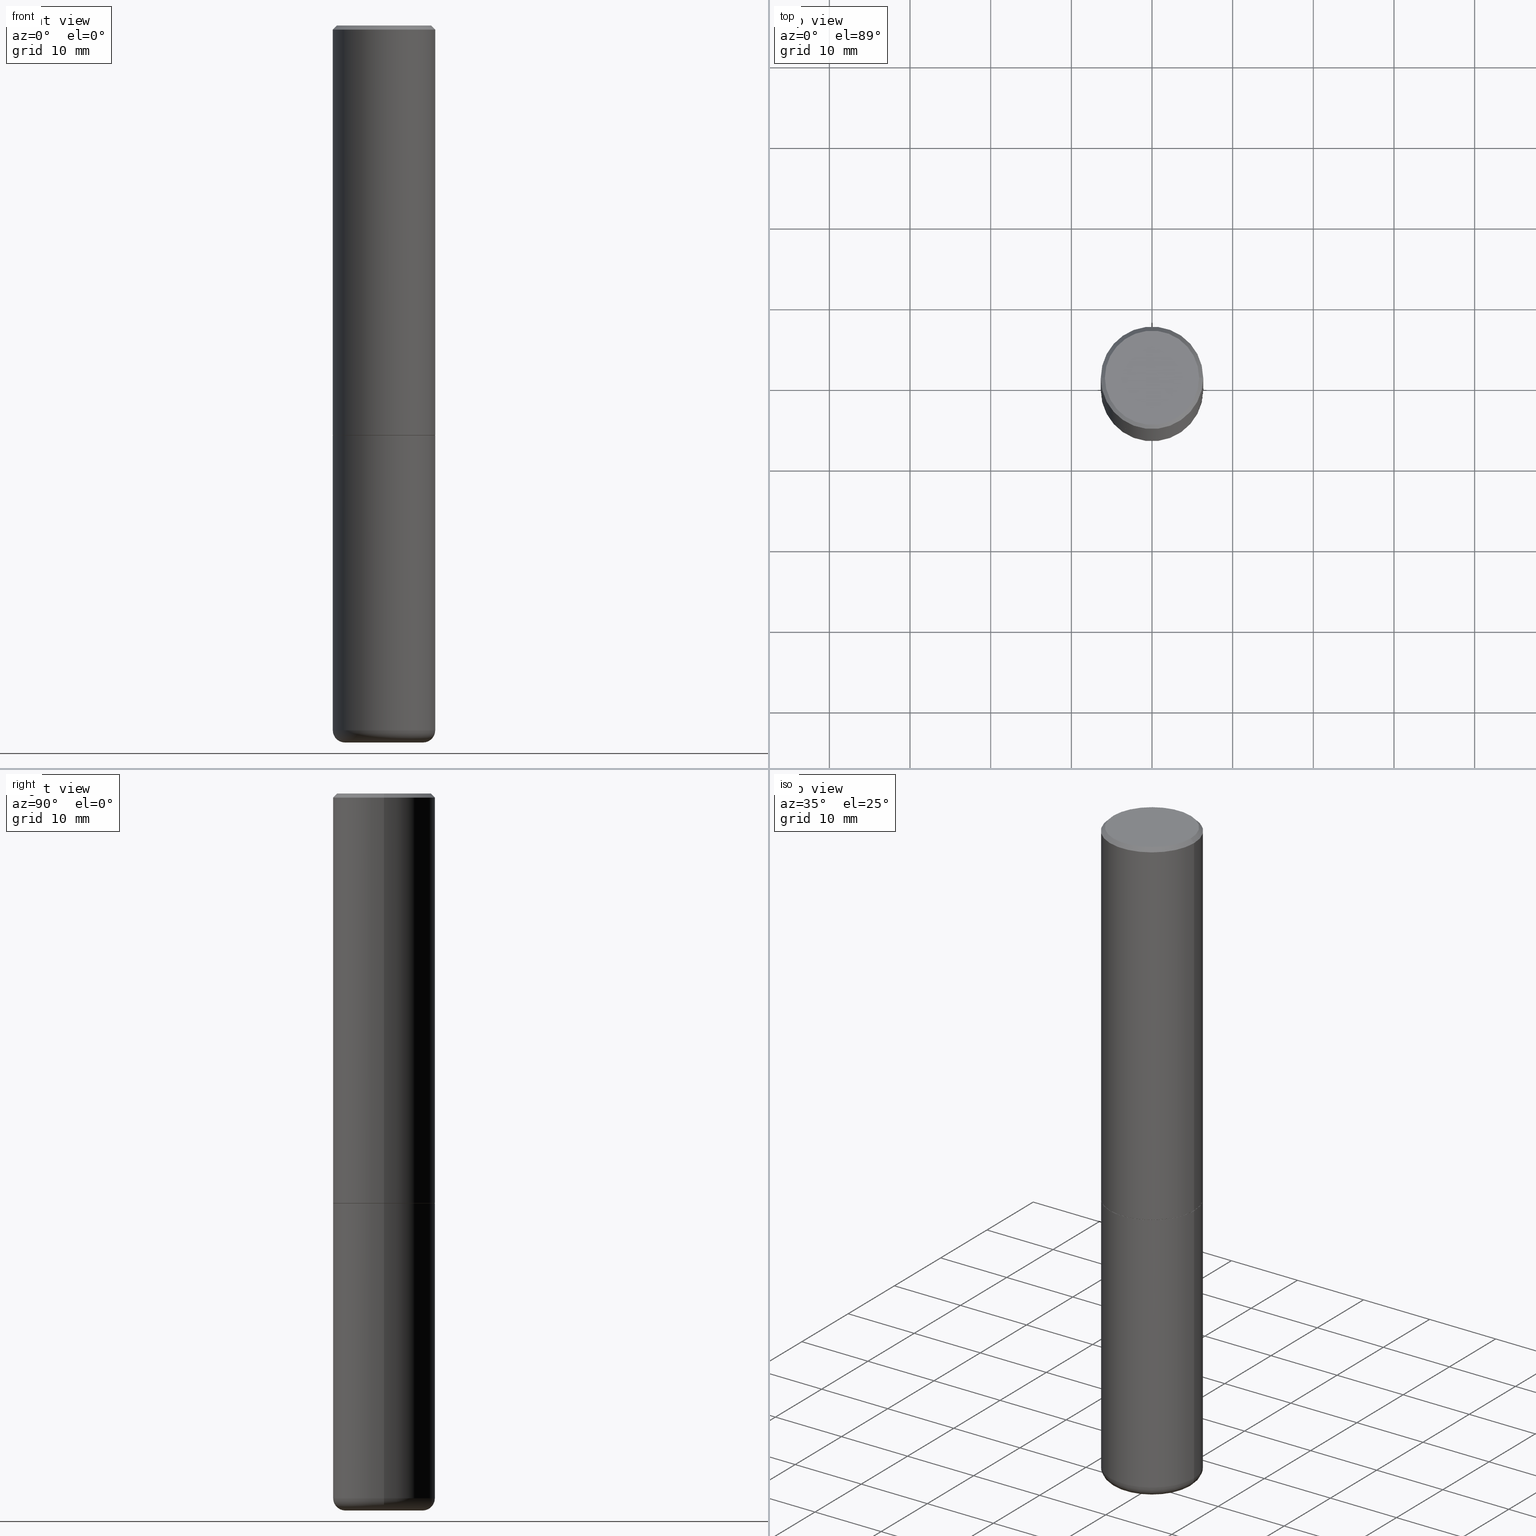
[diagram: canonical four-view strip — front | top / right | iso, engineering-drawing reading convention]
A machine part, canonical four-view strip (front | top / right | iso — engineering-drawing reading convention). The complete STEP part file that produces these views, byte-faithful:
ISO-10303-21;
HEADER;
FILE_DESCRIPTION (( 'STEP AP203' ),
    '1' );
FILE_NAME ('77195.STEP',
    '2024-03-06T16:23:03',
    ( '' ),
    ( '' ),
    'SwSTEP 2.0',
    'SolidWorks 2023',
    '' );
FILE_SCHEMA (( 'CONFIG_CONTROL_DESIGN' ));
ENDSEC;

DATA;
#1 = CARTESIAN_POINT ( 'NONE',  ( 2.087702828670439639E-46, -2.980686340760894400E-32, -8.537024980200822558E-18 ) ) ;
#2 = AXIS2_PLACEMENT_3D ( 'NONE', #143, #390, #11 ) ;
#3 = AXIS2_PLACEMENT_3D ( 'NONE', #276, #30, #161 ) ;
#4 = DIRECTION ( 'NONE',  ( -2.445468806185136597E-29, 3.491481338843145583E-15, 1.000000000000000000 ) ) ;
#5 = ORIENTED_EDGE ( 'NONE', *, *, #372, .T. ) ;
#6 = APPROVAL_ROLE ( '' ) ;
#7 = DIRECTION ( 'NONE',  ( 1.000000000000000000, -6.982962677686266711E-15, 4.876176775795935793E-29 ) ) ;
#8 = DATE_TIME_ROLE ( 'creation_date' ) ;
#9 = FACE_OUTER_BOUND ( 'NONE', #109, .T. ) ;
#10 = AXIS2_PLACEMENT_3D ( 'NONE', #257, #293, #316 ) ;
#11 = DIRECTION ( 'NONE',  ( -1.000000000000000000, 6.982962677686265922E-15, -4.876176775795935793E-29 ) ) ;
#12 = ORIENTED_EDGE ( 'NONE', *, *, #386, .T. ) ;
#13 = ADVANCED_FACE ( 'NONE', ( #180 ), #184, .T. ) ;
#14 = CARTESIAN_POINT ( 'NONE',  ( -0.1899999999999999745, -1.066066460767623105E-14, -3.439999999999999947 ) ) ;
#15 = CARTESIAN_POINT ( 'NONE',  ( 4.890937612370287172E-31, -6.982962677686310098E-17, -0.02000000000000005593 ) ) ;
#16 = EDGE_LOOP ( 'NONE', ( #120, #328 ) ) ;
#17 = DIRECTION ( 'NONE',  ( 2.445468806185136597E-29, -3.491481338843145583E-15, -1.000000000000000000 ) ) ;
#18 = ORIENTED_EDGE ( 'NONE', *, *, #418, .T. ) ;
#19 = MANIFOLD_SOLID_BREP ( 'Body-Move/Copy2[1]', #249 ) ;
#20 = CARTESIAN_POINT ( 'NONE',  ( 4.890937612370273194E-29, -6.982962677686291165E-15, -2.000000000000000000 ) ) ;
#21 = DIRECTION ( 'NONE',  ( -2.445468806185136597E-29, 3.491481338843145583E-15, 1.000000000000000000 ) ) ;
#22 = LINE ( 'NONE', #217, #92 ) ;
#23 = CARTESIAN_POINT ( 'NONE',  ( 4.888492143564087591E-29, -6.979471196347447369E-15, -1.998999999999999888 ) ) ;
#24 = PRODUCT_RELATED_PRODUCT_CATEGORY ( 'detail', '', ( #371 ) ) ;
#25 = AXIS2_PLACEMENT_3D ( 'NONE', #23, #311, #413 ) ;
#26 = AXIS2_PLACEMENT_3D ( 'NONE', #280, #312, #76 ) ;
#27 = DIRECTION ( 'NONE',  ( 1.000000000000000000, -6.982962677686266711E-15, 0.000000000000000000 ) ) ;
#28 = CARTESIAN_POINT ( 'NONE',  ( 8.412412693276869938E-29, -1.201069580562042103E-14, -3.439999999999999947 ) ) ;
#29 = ADVANCED_FACE ( 'NONE', ( #405 ), #368, .T. ) ;
#30 = DIRECTION ( 'NONE',  ( -2.445468806185136597E-29, 3.491481338843145583E-15, 1.000000000000000000 ) ) ;
#31 = AXIS2_PLACEMENT_3D ( 'NONE', #111, #240, #361 ) ;
#32 = DIRECTION ( 'NONE',  ( -2.445468806185136597E-29, 3.491481338843145583E-15, 1.000000000000000000 ) ) ;
#33 = APPROVAL_ROLE ( '' ) ;
#34 = DIRECTION ( 'NONE',  ( -1.000000000000000000, 6.982962677686265922E-15, -4.876176775795935793E-29 ) ) ;
#35 = CARTESIAN_POINT ( 'NONE',  ( -0.2489999999999999991, -5.208412811295418518E-15, -2.000000000000000000 ) ) ;
#36 = APPROVAL_STATUS ( 'not_yet_approved' ) ;
#37 = DIRECTION ( 'NONE',  ( 1.000000000000000000, -6.982962677686267499E-15, 4.876225828469310563E-29 ) ) ;
#38 = ORIENTED_EDGE ( 'NONE', *, *, #275, .F. ) ;
#39 = DIRECTION ( 'NONE',  ( -1.000000000000000000, 6.982962677686265922E-15, -4.876176775795935793E-29 ) ) ;
#40 = VERTEX_POINT ( 'NONE', #300 ) ;
#41 = DATE_AND_TIME ( #226, #250 ) ;
#42 = DIRECTION ( 'NONE',  ( -2.445468806185136597E-29, 3.491481338843145583E-15, 1.000000000000000000 ) ) ;
#43 = DIRECTION ( 'NONE',  ( 0.7071067811866199593, -2.468850131083015945E-15, 0.7071067811864750752 ) ) ;
#44 = DIRECTION ( 'NONE',  ( -2.445468806185136877E-29, 3.491481338843145188E-15, 1.000000000000000000 ) ) ;
#45 = ORIENTED_EDGE ( 'NONE', *, *, #278, .F. ) ;
#46 = AXIS2_PLACEMENT_3D ( 'NONE', #108, #227, #39 ) ;
#47 = AXIS2_PLACEMENT_3D ( 'NONE', #374, #310, #90 ) ;
#48 = ORIENTED_EDGE ( 'NONE', *, *, #267, .F. ) ;
#49 = EDGE_CURVE ( 'NONE', #298, #130, #113, .T. ) ;
#50 = EDGE_LOOP ( 'NONE', ( #366, #173, #152, #38 ) ) ;
#51 = EDGE_CURVE ( 'NONE', #245, #130, #104, .T. ) ;
#52 = EDGE_LOOP ( 'NONE', ( #5, #155 ) ) ;
#53 = AXIS2_PLACEMENT_3D ( 'NONE', #382, #42, #385 ) ;
#54 = DIRECTION ( 'NONE',  ( -2.445468806185136597E-29, 3.491481338843145583E-15, 1.000000000000000000 ) ) ;
#55 = CARTESIAN_POINT ( 'NONE',  ( 8.559140821647976968E-29, -1.222018468595100934E-14, -3.500000000000000000 ) ) ;
#56 =( CONVERSION_BASED_UNIT ( 'INCH', #409 ) LENGTH_UNIT ( ) NAMED_UNIT ( #121 ) );
#57 = DIRECTION ( 'NONE',  ( 0.7071067811865465735, -7.319954787623252890E-15, -0.7071067811865484609 ) ) ;
#58 = EDGE_CURVE ( 'NONE', #245, #140, #241, .T. ) ;
#59 = AXIS2_PLACEMENT_3D ( 'NONE', #238, #290, #34 ) ;
#60 = DIRECTION ( 'NONE',  ( 1.000000000000000000, -6.982962677686273021E-15, 0.000000000000000000 ) ) ;
#61 = CARTESIAN_POINT ( 'NONE',  ( -0.2500000000000000000, -7.720472402253106025E-15, -2.000000000000000000 ) ) ;
#62 = MECHANICAL_CONTEXT ( 'NONE', #231, 'mechanical' ) ;
#63 = DIRECTION ( 'NONE',  ( -2.445468806185136597E-29, 3.491481338843145583E-15, 1.000000000000000000 ) ) ;
#64 = APPROVAL_STATUS ( 'not_yet_approved' ) ;
#65 = DIRECTION ( 'NONE',  ( 1.000000000000000000, -6.982962677686265133E-15, 4.883557194083112340E-29 ) ) ;
#66 = PERSON_AND_ORGANIZATION ( #216, #81 ) ;
#67 = FACE_OUTER_BOUND ( 'NONE', #239, .T. ) ;
#68 = CLOSED_SHELL ( 'NONE', ( #123, #13, #346, #29, #330, #252, #335, #132 ) ) ;
#69 = CC_DESIGN_APPROVAL ( #351, ( #393 ) ) ;
#70 = ORIENTED_EDGE ( 'NONE', *, *, #278, .T. ) ;
#71 = APPLICATION_PROTOCOL_DEFINITION ( 'international standard', 'config_control_design', 1994, #379 ) ;
#72 = CC_DESIGN_PERSON_AND_ORGANIZATION_ASSIGNMENT ( #348, #264, ( #393 ) ) ;
#73 = LINE ( 'NONE', #172, #265 ) ;
#74 = ORIENTED_EDGE ( 'NONE', *, *, #386, .F. ) ;
#75 = ADVANCED_FACE ( 'NONE', ( #322 ), #256, .T. ) ;
#76 = DIRECTION ( 'NONE',  ( 1.000000000000000000, -6.982962677686274599E-15, 0.000000000000000000 ) ) ;
#77 = CARTESIAN_POINT ( 'NONE',  ( 2.087702828670439639E-46, -2.980686340760894400E-32, -8.537024980200822558E-18 ) ) ;
#78 = ORIENTED_EDGE ( 'NONE', *, *, #89, .T. ) ;
#79 = ORIENTED_EDGE ( 'NONE', *, *, #167, .F. ) ;
#80 = AXIS2_PLACEMENT_3D ( 'NONE', #15, #154, #400 ) ;
#81 = ORGANIZATION ( 'UNSPECIFIED', 'UNSPECIFIED', '' ) ;
#82 = ORIENTED_EDGE ( 'NONE', *, *, #160, .T. ) ;
#83 = ORIENTED_EDGE ( 'NONE', *, *, #299, .F. ) ;
#84 = ORIENTED_EDGE ( 'NONE', *, *, #275, .T. ) ;
#85 = CARTESIAN_POINT ( 'NONE',  ( 4.890937612370273194E-29, -6.982962677686291165E-15, -2.000000000000000000 ) ) ;
#86 = CONICAL_SURFACE ( 'NONE', #165, 0.2499999999999999167, 0.7853981633974469467 ) ;
#87 = EDGE_CURVE ( 'NONE', #130, #298, #355, .T. ) ;
#88 = DIRECTION ( 'NONE',  ( 1.000000000000000000, -6.982962677686266711E-15, 0.000000000000000000 ) ) ;
#89 = EDGE_CURVE ( 'NONE', #396, #331, #395, .T. ) ;
#90 = DIRECTION ( 'NONE',  ( 1.000000000000000000, -6.982962677686266711E-15, 4.876176775795935793E-29 ) ) ;
#91 = PRODUCT_DEFINITION ( 'UNKNOWN', '', #393, #251 ) ;
#92 = VECTOR ( 'NONE', #43, 39.37007874015748143 ) ;
#93 = CC_DESIGN_APPROVAL ( #289, ( #91 ) ) ;
#94 = ORIENTED_EDGE ( 'NONE', *, *, #49, .T. ) ;
#95 = PERSON_AND_ORGANIZATION ( #216, #81 ) ;
#96 = AXIS2_PLACEMENT_3D ( 'NONE', #365, #403, #118 ) ;
#97 = AXIS2_PLACEMENT_3D ( 'NONE', #14, #339, #162 ) ;
#98 = PERSON_AND_ORGANIZATION_ROLE ( 'classification_officer' ) ;
#99 = FACE_OUTER_BOUND ( 'NONE', #16, .T. ) ;
#100 = PERSON_AND_ORGANIZATION ( #216, #81 ) ;
#101 = FACE_OUTER_BOUND ( 'NONE', #358, .T. ) ;
#102 = VERTEX_POINT ( 'NONE', #297 ) ;
#103 = COORDINATED_UNIVERSAL_TIME_OFFSET ( 5, 0, .BEHIND. ) ;
#104 = LINE ( 'NONE', #166, #129 ) ;
#105 = VECTOR ( 'NONE', #151, 39.37007874015748143 ) ;
#106 = VERTEX_POINT ( 'NONE', #317 ) ;
#107 = APPROVAL_DATE_TIME ( #170, #351 ) ;
#108 = CARTESIAN_POINT ( 'NONE',  ( 1.606081415867840870E-15, 0.2299999999999999267, -8.073092204240237214E-16 ) ) ;
#109 = EDGE_LOOP ( 'NONE', ( #360, #244, #215, #208 ) ) ;
#110 = FACE_OUTER_BOUND ( 'NONE', #388, .T. ) ;
#111 = CARTESIAN_POINT ( 'NONE',  ( 4.890937612370287172E-31, -6.982962677686310098E-17, -0.02000000000000005593 ) ) ;
#112 = DIRECTION ( 'NONE',  ( -2.445468806185136597E-29, 3.491481338843145583E-15, 1.000000000000000000 ) ) ;
#113 = CIRCLE ( 'NONE', #80, 0.2499999999999999167 ) ;
#114 = FACE_OUTER_BOUND ( 'NONE', #246, .T. ) ;
#115 = ORIENTED_EDGE ( 'NONE', *, *, #372, .F. ) ;
#116 = AXIS2_PLACEMENT_3D ( 'NONE', #404, #341, #338 ) ;
#117 = ORIENTED_EDGE ( 'NONE', *, *, #167, .T. ) ;
#118 = DIRECTION ( 'NONE',  ( 1.000000000000000000, -6.982962677686266711E-15, 0.000000000000000000 ) ) ;
#119 = CARTESIAN_POINT ( 'NONE',  ( 4.890937612370273194E-29, -6.982962677686291165E-15, -2.000000000000000000 ) ) ;
#120 = ORIENTED_EDGE ( 'NONE', *, *, #58, .T. ) ;
#121 = DIMENSIONAL_EXPONENTS ( 1.000000000000000000, 0.000000000000000000, 0.000000000000000000, 0.000000000000000000, 0.000000000000000000, 0.000000000000000000, 0.000000000000000000 ) ;
#122 = CIRCLE ( 'NONE', #168, 0.2500000000000000000 ) ;
#123 = ADVANCED_FACE ( 'NONE', ( #67 ), #148, .T. ) ;
#124 = APPROVAL_PERSON_ORGANIZATION ( #142, #207, #33 ) ;
#125 = CC_DESIGN_PERSON_AND_ORGANIZATION_ASSIGNMENT ( #95, #417, ( #393 ) ) ;
#126 = FACE_OUTER_BOUND ( 'NONE', #273, .T. ) ;
#127 = CARTESIAN_POINT ( 'NONE',  ( 4.888492143564087591E-29, -6.979471196347447369E-15, -1.998999999999999888 ) ) ;
#128 = ADVANCED_FACE ( 'NONE', ( #101 ), #353, .T. ) ;
#129 = VECTOR ( 'NONE', #204, 39.37007874015748143 ) ;
#130 = VERTEX_POINT ( 'NONE', #139 ) ;
#131 = DIRECTION ( 'NONE',  ( -2.445468806185136597E-29, 3.491481338843145583E-15, 1.000000000000000000 ) ) ;
#132 = ADVANCED_FACE ( 'NONE', ( #99 ), #327, .F. ) ;
#133 = DATE_AND_TIME ( #416, #281 ) ;
#134 = COORDINATED_UNIVERSAL_TIME_OFFSET ( 5, 0, .BEHIND. ) ;
#135 = TOROIDAL_SURFACE ( 'NONE', #285, 0.1899999999999999745, 0.05999999999999995615 ) ;
#136 = DIRECTION ( 'NONE',  ( -2.445468806185136597E-29, 3.491481338843145583E-15, 1.000000000000000000 ) ) ;
#137 = SECURITY_CLASSIFICATION ( '', '', #193 ) ;
#138 = ORIENTED_EDGE ( 'NONE', *, *, #49, .F. ) ;
#139 = CARTESIAN_POINT ( 'NONE',  ( -0.2499999999999999167, 1.675911042644703182E-15, -0.02000000000000005593 ) ) ;
#140 = VERTEX_POINT ( 'NONE', #397 ) ;
#141 = ORIENTED_EDGE ( 'NONE', *, *, #87, .F. ) ;
#142 = PERSON_AND_ORGANIZATION ( #216, #81 ) ;
#143 = CARTESIAN_POINT ( 'NONE',  ( 8.559140821647976968E-29, -1.222018468595100934E-14, -3.500000000000000000 ) ) ;
#144 = ADVANCED_FACE ( 'NONE', ( #9 ), #350, .T. ) ;
#145 = EDGE_LOOP ( 'NONE', ( #301, #176, #94, #354 ) ) ;
#146 = APPROVAL_STATUS ( 'not_yet_approved' ) ;
#147 = CARTESIAN_POINT ( 'NONE',  ( 8.412412693276869938E-29, -1.201069580562042103E-14, -3.439999999999999947 ) ) ;
#148 = CONICAL_SURFACE ( 'NONE', #53, 0.2489999999999999991, 0.7853981633975507526 ) ;
#149 = CIRCLE ( 'NONE', #26, 0.05999999999999994227 ) ;
#150 = EDGE_LOOP ( 'NONE', ( #263, #333, #232, #181 ) ) ;
#151 = DIRECTION ( 'NONE',  ( -0.7071067811866199593, 7.493145998870616062E-15, 0.7071067811864750752 ) ) ;
#152 = ORIENTED_EDGE ( 'NONE', *, *, #270, .T. ) ;
#153 = DIRECTION ( 'NONE',  ( 1.000000000000000000, -6.982962677686273021E-15, 0.000000000000000000 ) ) ;
#154 = DIRECTION ( 'NONE',  ( -2.445468806185136597E-29, 3.491481338843145583E-15, 1.000000000000000000 ) ) ;
#155 = ORIENTED_EDGE ( 'NONE', *, *, #262, .T. ) ;
#156 = ORIENTED_EDGE ( 'NONE', *, *, #418, .F. ) ;
#157 = ADVANCED_FACE ( 'NONE', ( #236 ), #206, .F. ) ;
#158 = CARTESIAN_POINT ( 'NONE',  ( 0.2499999999999999167, -1.784954126219745400E-15, -0.02000000000000005593 ) ) ;
#159 = CIRCLE ( 'NONE', #378, 0.1899999999999999745 ) ;
#160 = EDGE_CURVE ( 'NONE', #274, #106, #284, .T. ) ;
#161 = DIRECTION ( 'NONE',  ( 1.000000000000000000, -6.982962677686266711E-15, 0.000000000000000000 ) ) ;
#162 = DIRECTION ( 'NONE',  ( -1.000000000000000000, 7.105427357600997914E-15, 0.000000000000000000 ) ) ;
#163 = DIRECTION ( 'NONE',  ( -2.445468806185136597E-29, 3.491481338843145583E-15, 1.000000000000000000 ) ) ;
#164 = CIRCLE ( 'NONE', #347, 0.2489999999999999991 ) ;
#165 = AXIS2_PLACEMENT_3D ( 'NONE', #363, #17, #212 ) ;
#166 = CARTESIAN_POINT ( 'NONE',  ( -0.2499999999999999167, 1.675911042644703182E-15, -0.02000000000000005593 ) ) ;
#167 = EDGE_CURVE ( 'NONE', #259, #298, #73, .T. ) ;
#168 = AXIS2_PLACEMENT_3D ( 'NONE', #85, #54, #304 ) ;
#169 = CARTESIAN_POINT ( 'NONE',  ( -0.2299999999999999267, 1.640996229256272125E-15, -8.537024980212177841E-18 ) ) ;
#170 = DATE_AND_TIME ( #196, #296 ) ;
#171 = PLANE ( 'NONE',  #375 ) ;
#172 = CARTESIAN_POINT ( 'NONE',  ( 0.2500000000000001110, -1.745740669421567467E-15, 1.219044193948984509E-29 ) ) ;
#173 = ORIENTED_EDGE ( 'NONE', *, *, #321, .T. ) ;
#174 = DATE_AND_TIME ( #203, #408 ) ;
#175 = DIRECTION ( 'NONE',  ( -2.445468806185136597E-29, 3.491481338843145583E-15, 1.000000000000000000 ) ) ;
#176 = ORIENTED_EDGE ( 'NONE', *, *, #314, .T. ) ;
#177 = DIRECTION ( 'NONE',  ( -2.445468806185136877E-29, 3.491481338843145188E-15, 1.000000000000000000 ) ) ;
#178 = CIRCLE ( 'NONE', #407, 0.2500000000000002776 ) ;
#179 = APPROVAL_PERSON_ORGANIZATION ( #66, #351, #199 ) ;
#180 = FACE_OUTER_BOUND ( 'NONE', #201, .T. ) ;
#181 = ORIENTED_EDGE ( 'NONE', *, *, #87, .T. ) ;
#182 = ORIENTED_EDGE ( 'NONE', *, *, #198, .T. ) ;
#183 = UNCERTAINTY_MEASURE_WITH_UNIT (LENGTH_MEASURE( 1.000000000000000082E-05 ), #56, 'distance_accuracy_value', 'NONE');
#184 = CYLINDRICAL_SURFACE ( 'NONE', #234, 0.2500000000000001110 ) ;
#185 = CIRCLE ( 'NONE', #210, 0.2500000000000000000 ) ;
#186 = ADVANCED_FACE ( 'NONE', ( #110 ), #135, .T. ) ;
#187 = CARTESIAN_POINT ( 'NONE',  ( 8.559140821647976968E-29, -1.222018468595100934E-14, -3.500000000000000000 ) ) ;
#188 = DIRECTION ( 'NONE',  ( -2.445468806185136597E-29, 3.491481338843145583E-15, 1.000000000000000000 ) ) ;
#189 =( GEOMETRIC_REPRESENTATION_CONTEXT ( 3 ) GLOBAL_UNCERTAINTY_ASSIGNED_CONTEXT ( ( #183 ) ) GLOBAL_UNIT_ASSIGNED_CONTEXT ( ( #56, #345, #306 ) ) REPRESENTATION_CONTEXT ( 'NONE', 'WORKASPACE' ) );
#190 = VECTOR ( 'NONE', #177, 39.37007874015748143 ) ;
#191 = PERSON_AND_ORGANIZATION ( #216, #81 ) ;
#192 = CC_DESIGN_SECURITY_CLASSIFICATION ( #137, ( #393 ) ) ;
#193 = SECURITY_CLASSIFICATION_LEVEL ( 'unclassified' ) ;
#194 = CARTESIAN_POINT ( 'NONE',  ( -0.2500000000000000000, 1.776356839400250465E-15, -1.229733772563726445E-29 ) ) ;
#195 = CC_DESIGN_DATE_AND_TIME_ASSIGNMENT ( #320, #8, ( #91 ) ) ;
#196 = CALENDAR_DATE ( 2024, 6, 3 ) ;
#197 = DIRECTION ( 'NONE',  ( -2.445468806185136877E-29, 3.491481338843145188E-15, 1.000000000000000000 ) ) ;
#198 = EDGE_CURVE ( 'NONE', #106, #130, #200, .T. ) ;
#199 = APPROVAL_ROLE ( '' ) ;
#200 = LINE ( 'NONE', #359, #414 ) ;
#201 = EDGE_LOOP ( 'NONE', ( #315, #182, #138, #79 ) ) ;
#202 = ORIENTED_EDGE ( 'NONE', *, *, #255, .T. ) ;
#203 = CALENDAR_DATE ( 2024, 6, 3 ) ;
#204 = DIRECTION ( 'NONE',  ( -0.7071067811865465735, 2.468850131082246805E-15, -0.7071067811865484609 ) ) ;
#205 = EDGE_CURVE ( 'NONE', #140, #245, #336, .T. ) ;
#206 = PLANE ( 'NONE',  #59 ) ;
#207 = APPROVAL ( #36, 'UNSPECIFIED' ) ;
#208 = ORIENTED_EDGE ( 'NONE', *, *, #262, .F. ) ;
#209 = CIRCLE ( 'NONE', #25, 0.2500000000000002776 ) ;
#210 = AXIS2_PLACEMENT_3D ( 'NONE', #218, #188, #332 ) ;
#211 = DIRECTION ( 'NONE',  ( -2.445468806185136597E-29, 3.491481338843145583E-15, 1.000000000000000000 ) ) ;
#212 = DIRECTION ( 'NONE',  ( -1.000000000000000000, 6.982962677686267499E-15, 0.000000000000000000 ) ) ;
#213 = ORIENTED_EDGE ( 'NONE', *, *, #415, .T. ) ;
#214 = PRODUCT_DEFINITION_SHAPE ( 'NONE', 'NONE',  #91 ) ;
#215 = ORIENTED_EDGE ( 'NONE', *, *, #309, .T. ) ;
#216 = PERSON ( 'UNSPECIFIED', 'UNSPECIFIED', 'UNSPECIFIED', ('UNSPECIFIED'), ('UNSPECIFIED'), ('UNSPECIFIED') ) ;
#217 = CARTESIAN_POINT ( 'NONE',  ( 0.2489999999999999991, -8.721720384430171040E-15, -2.000000000000000000 ) ) ;
#218 = CARTESIAN_POINT ( 'NONE',  ( 8.412412693276869938E-29, -1.201069580562042103E-14, -3.439999999999999947 ) ) ;
#219 = CARTESIAN_POINT ( 'NONE',  ( 0.2500000000000000000, -1.745740669421566678E-15, 1.219044193948983948E-29 ) ) ;
#220 = APPLICATION_PROTOCOL_DEFINITION ( 'international standard', 'config_control_design', 1994, #231 ) ;
#221 = DIRECTION ( 'NONE',  ( 1.000000000000000000, -6.982962677686266711E-15, 0.000000000000000000 ) ) ;
#222 = CC_DESIGN_PERSON_AND_ORGANIZATION_ASSIGNMENT ( #100, #352, ( #91 ) ) ;
#223 = LINE ( 'NONE', #158, #362 ) ;
#224 = AXIS2_PLACEMENT_3D ( 'NONE', #1, #175, #325 ) ;
#225 = PERSON_AND_ORGANIZATION_ROLE ( 'design_owner' ) ;
#226 = CALENDAR_DATE ( 2024, 6, 3 ) ;
#227 = DIRECTION ( 'NONE',  ( 2.438088387897960049E-29, -3.491481338843145188E-15, -1.000000000000000000 ) ) ;
#228 = EDGE_LOOP ( 'NONE', ( #48, #383 ) ) ;
#229 = COORDINATED_UNIVERSAL_TIME_OFFSET ( 5, 0, .BEHIND. ) ;
#230 = DIRECTION ( 'NONE',  ( -2.445468806185136597E-29, 3.491481338843145583E-15, 1.000000000000000000 ) ) ;
#231 = APPLICATION_CONTEXT ( 'configuration controlled 3d designs of mechanical parts and assemblies' ) ;
#232 = ORIENTED_EDGE ( 'NONE', *, *, #51, .T. ) ;
#233 = COORDINATED_UNIVERSAL_TIME_OFFSET ( 5, 0, .BEHIND. ) ;
#234 = AXIS2_PLACEMENT_3D ( 'NONE', #269, #211, #398 ) ;
#235 = TOROIDAL_SURFACE ( 'NONE', #116, 0.1899999999999999745, 0.05999999999999995615 ) ;
#236 = FACE_OUTER_BOUND ( 'NONE', #52, .T. ) ;
#237 = ORIENTED_EDGE ( 'NONE', *, *, #309, .F. ) ;
#238 = CARTESIAN_POINT ( 'NONE',  ( 3.364826205900701146E-29, -9.168441072617700951E-15, -2.000000000000000000 ) ) ;
#239 = EDGE_LOOP ( 'NONE', ( #387, #82, #83, #334 ) ) ;
#240 = DIRECTION ( 'NONE',  ( 2.445468806185136597E-29, -3.491481338843145583E-15, -1.000000000000000000 ) ) ;
#241 = CIRCLE ( 'NONE', #224, 0.2299999999999999267 ) ;
#242 = LOCAL_TIME ( 11, 23, 3.000000000000000000, #103 ) ;
#243 = FACE_OUTER_BOUND ( 'NONE', #145, .T. ) ;
#244 = ORIENTED_EDGE ( 'NONE', *, *, #349, .T. ) ;
#245 = VERTEX_POINT ( 'NONE', #169 ) ;
#246 = EDGE_LOOP ( 'NONE', ( #364, #70, #12, #391 ) ) ;
#247 = AXIS2_PLACEMENT_3D ( 'NONE', #77, #319, #37 ) ;
#248 = CYLINDRICAL_SURFACE ( 'NONE', #47, 0.2500000000000001110 ) ;
#249 = CLOSED_SHELL ( 'NONE', ( #75, #186, #157, #144, #342, #128 ) ) ;
#250 = LOCAL_TIME ( 11, 23, 3.000000000000000000, #288 ) ;
#251 = DESIGN_CONTEXT ( 'detailed design', #379, 'design' ) ;
#252 = ADVANCED_FACE ( 'NONE', ( #287 ), #295, .T. ) ;
#253 = CALENDAR_DATE ( 2024, 6, 3 ) ;
#254 = CIRCLE ( 'NONE', #97, 0.05999999999999994227 ) ;
#255 = EDGE_CURVE ( 'NONE', #292, #40, #307, .T. ) ;
#256 = CYLINDRICAL_SURFACE ( 'NONE', #302, 0.2500000000000000000 ) ;
#257 = CARTESIAN_POINT ( 'NONE',  ( 0.000000000000000000, 0.000000000000000000, 0.000000000000000000 ) ) ;
#258 = DIRECTION ( 'NONE',  ( 1.000000000000000000, -6.982962677686267499E-15, 0.000000000000000000 ) ) ;
#259 = VERTEX_POINT ( 'NONE', #329 ) ;
#260 = CARTESIAN_POINT ( 'NONE',  ( -0.2499999999999999722, -1.023433896622016898E-14, -3.439999999999999947 ) ) ;
#261 = CARTESIAN_POINT ( 'NONE',  ( 0.000000000000000000, 0.000000000000000000, 0.000000000000000000 ) ) ;
#262 = EDGE_CURVE ( 'NONE', #331, #323, #122, .T. ) ;
#263 = ORIENTED_EDGE ( 'NONE', *, *, #314, .F. ) ;
#264 = PERSON_AND_ORGANIZATION_ROLE ( 'creator' ) ;
#265 = VECTOR ( 'NONE', #44, 39.37007874015748143 ) ;
#266 = DIRECTION ( 'NONE',  ( 1.000000000000000000, -6.982962677686266711E-15, 4.876176775795935793E-29 ) ) ;
#267 = EDGE_CURVE ( 'NONE', #271, #274, #164, .T. ) ;
#268 = CARTESIAN_POINT ( 'NONE',  ( 4.890937612370287172E-31, -6.982962677686310098E-17, -0.02000000000000005593 ) ) ;
#269 = CARTESIAN_POINT ( 'NONE',  ( 0.000000000000000000, 0.000000000000000000, 0.000000000000000000 ) ) ;
#270 = EDGE_CURVE ( 'NONE', #271, #259, #22, .T. ) ;
#271 = VERTEX_POINT ( 'NONE', #282 ) ;
#272 = AXIS2_PLACEMENT_3D ( 'NONE', #268, #4, #258 ) ;
#273 = EDGE_LOOP ( 'NONE', ( #303, #84, #117, #141 ) ) ;
#274 = VERTEX_POINT ( 'NONE', #35 ) ;
#275 = EDGE_CURVE ( 'NONE', #106, #259, #178, .T. ) ;
#276 = CARTESIAN_POINT ( 'NONE',  ( 4.890937612370273194E-29, -6.982962677686291165E-15, -2.000000000000000000 ) ) ;
#277 = CC_DESIGN_APPROVAL ( #207, ( #137 ) ) ;
#278 = EDGE_CURVE ( 'NONE', #40, #292, #159, .T. ) ;
#279 = CARTESIAN_POINT ( 'NONE',  ( 0.2499999999999999167, -1.784954126219745400E-15, -0.02000000000000005593 ) ) ;
#280 = CARTESIAN_POINT ( 'NONE',  ( 0.1899999999999999745, -1.333745871438081265E-14, -3.439999999999999947 ) ) ;
#281 = LOCAL_TIME ( 11, 23, 3.000000000000000000, #229 ) ;
#282 = CARTESIAN_POINT ( 'NONE',  ( 0.2489999999999999991, -8.721720384430171040E-15, -2.000000000000000000 ) ) ;
#283 = APPROVAL_DATE_TIME ( #174, #207 ) ;
#284 = LINE ( 'NONE', #357, #105 ) ;
#285 = AXIS2_PLACEMENT_3D ( 'NONE', #147, #136, #65 ) ;
#286 = CIRCLE ( 'NONE', #3, 0.2489999999999999991 ) ;
#287 = FACE_OUTER_BOUND ( 'NONE', #50, .T. ) ;
#288 = COORDINATED_UNIVERSAL_TIME_OFFSET ( 5, 0, .BEHIND. ) ;
#289 = APPROVAL ( #64, 'UNSPECIFIED' ) ;
#290 = DIRECTION ( 'NONE',  ( 2.438088387897960049E-29, -3.491481338843145188E-15, -1.000000000000000000 ) ) ;
#291 = CC_DESIGN_DATE_AND_TIME_ASSIGNMENT ( #41, #389, ( #137 ) ) ;
#292 = VERTEX_POINT ( 'NONE', #305 ) ;
#293 = DIRECTION ( 'NONE',  ( 0.000000000000000000, 0.000000000000000000, 1.000000000000000000 ) ) ;
#294 = CARTESIAN_POINT ( 'NONE',  ( 0.000000000000000000, 0.000000000000000000, 0.000000000000000000 ) ) ;
#295 = CONICAL_SURFACE ( 'NONE', #96, 0.2489999999999999991, 0.7853981633975507526 ) ;
#296 = LOCAL_TIME ( 11, 23, 3.000000000000000000, #134 ) ;
#297 = CARTESIAN_POINT ( 'NONE',  ( 0.2499999999999999722, -1.375643647504198770E-14, -3.439999999999999947 ) ) ;
#298 = VERTEX_POINT ( 'NONE', #279 ) ;
#299 = EDGE_CURVE ( 'NONE', #259, #106, #209, .T. ) ;
#300 = CARTESIAN_POINT ( 'NONE',  ( -0.1899999999999999745, -1.055224622711349575E-14, -3.500000000000000000 ) ) ;
#301 = ORIENTED_EDGE ( 'NONE', *, *, #205, .F. ) ;
#302 = AXIS2_PLACEMENT_3D ( 'NONE', #294, #230, #7 ) ;
#303 = ORIENTED_EDGE ( 'NONE', *, *, #198, .F. ) ;
#304 = DIRECTION ( 'NONE',  ( 1.000000000000000000, -6.982962677686266711E-15, 0.000000000000000000 ) ) ;
#305 = CARTESIAN_POINT ( 'NONE',  ( 0.1899999999999999745, -1.354694759471140096E-14, -3.500000000000000000 ) ) ;
#306 =( NAMED_UNIT ( * ) SI_UNIT ( $, .STERADIAN. ) SOLID_ANGLE_UNIT ( ) );
#307 = CIRCLE ( 'NONE', #343, 0.1899999999999999745 ) ;
#308 = CIRCLE ( 'NONE', #370, 0.2500000000000000000 ) ;
#309 = EDGE_CURVE ( 'NONE', #102, #323, #376, .T. ) ;
#310 = DIRECTION ( 'NONE',  ( -2.445468806185136597E-29, 3.491481338843145583E-15, 1.000000000000000000 ) ) ;
#311 = DIRECTION ( 'NONE',  ( -2.445468806185136597E-29, 3.491481338843145583E-15, 1.000000000000000000 ) ) ;
#312 = DIRECTION ( 'NONE',  ( -6.982962677686266711E-15, -1.000000000000000000, 3.491481338843145583E-15 ) ) ;
#313 = CIRCLE ( 'NONE', #337, 0.2500000000000000000 ) ;
#314 = EDGE_CURVE ( 'NONE', #140, #298, #223, .T. ) ;
#315 = ORIENTED_EDGE ( 'NONE', *, *, #299, .T. ) ;
#316 = DIRECTION ( 'NONE',  ( 1.000000000000000000, 0.000000000000000000, 0.000000000000000000 ) ) ;
#317 = CARTESIAN_POINT ( 'NONE',  ( -0.2500000000000002776, -1.748293572161900530E-15, -1.998999999999999888 ) ) ;
#318 = PERSON_AND_ORGANIZATION ( #216, #81 ) ;
#319 = DIRECTION ( 'NONE',  ( -2.445468806185136597E-29, 3.491481338843145583E-15, 1.000000000000000000 ) ) ;
#320 = DATE_AND_TIME ( #253, #242 ) ;
#321 = EDGE_CURVE ( 'NONE', #274, #271, #286, .T. ) ;
#322 = FACE_OUTER_BOUND ( 'NONE', #402, .T. ) ;
#323 = VERTEX_POINT ( 'NONE', #410 ) ;
#324 = CARTESIAN_POINT ( 'NONE',  ( 4.890937612370273194E-29, -6.982962677686291165E-15, -2.000000000000000000 ) ) ;
#325 = DIRECTION ( 'NONE',  ( 1.000000000000000000, -6.982962677686267499E-15, 4.876225828469310563E-29 ) ) ;
#326 = ORIENTED_EDGE ( 'NONE', *, *, #255, .F. ) ;
#327 = PLANE ( 'NONE',  #46 ) ;
#328 = ORIENTED_EDGE ( 'NONE', *, *, #205, .T. ) ;
#329 = CARTESIAN_POINT ( 'NONE',  ( 0.2500000000000002776, -8.725211865769015625E-15, -1.998999999999999888 ) ) ;
#330 = ADVANCED_FACE ( 'NONE', ( #126 ), #248, .T. ) ;
#331 = VERTEX_POINT ( 'NONE', #61 ) ;
#332 = DIRECTION ( 'NONE',  ( 1.000000000000000000, -6.982962677686270655E-15, 0.000000000000000000 ) ) ;
#333 = ORIENTED_EDGE ( 'NONE', *, *, #58, .F. ) ;
#334 = ORIENTED_EDGE ( 'NONE', *, *, #270, .F. ) ;
#335 = ADVANCED_FACE ( 'NONE', ( #380 ), #171, .F. ) ;
#336 = CIRCLE ( 'NONE', #247, 0.2299999999999999267 ) ;
#337 = AXIS2_PLACEMENT_3D ( 'NONE', #119, #32, #27 ) ;
#338 = DIRECTION ( 'NONE',  ( 1.000000000000000000, -6.982962677686265133E-15, 4.883557194083112340E-29 ) ) ;
#339 = DIRECTION ( 'NONE',  ( 7.105427357601001859E-15, 1.000000000000000000, -3.491481338843145583E-15 ) ) ;
#340 = DIRECTION ( 'NONE',  ( -2.445468806185136877E-29, 3.491481338843145188E-15, 1.000000000000000000 ) ) ;
#341 = DIRECTION ( 'NONE',  ( -2.445468806185136597E-29, 3.491481338843145583E-15, 1.000000000000000000 ) ) ;
#342 = ADVANCED_FACE ( 'NONE', ( #114 ), #235, .T. ) ;
#343 = AXIS2_PLACEMENT_3D ( 'NONE', #187, #112, #153 ) ;
#344 = APPROVAL_PERSON_ORGANIZATION ( #377, #289, #6 ) ;
#345 =( NAMED_UNIT ( * ) PLANE_ANGLE_UNIT ( ) SI_UNIT ( $, .RADIAN. ) );
#346 = ADVANCED_FACE ( 'NONE', ( #243 ), #86, .T. ) ;
#347 = AXIS2_PLACEMENT_3D ( 'NONE', #20, #369, #88 ) ;
#348 = PERSON_AND_ORGANIZATION ( #216, #81 ) ;
#349 = EDGE_CURVE ( 'NONE', #396, #102, #185, .T. ) ;
#350 = CYLINDRICAL_SURFACE ( 'NONE', #392, 0.2500000000000000000 ) ;
#351 = APPROVAL ( #146, 'UNSPECIFIED' ) ;
#352 = PERSON_AND_ORGANIZATION_ROLE ( 'creator' ) ;
#353 = PLANE ( 'NONE',  #2 ) ;
#354 = ORIENTED_EDGE ( 'NONE', *, *, #51, .F. ) ;
#355 = CIRCLE ( 'NONE', #272, 0.2499999999999999167 ) ;
#356 = VECTOR ( 'NONE', #340, 39.37007874015748143 ) ;
#357 = CARTESIAN_POINT ( 'NONE',  ( -0.2489999999999999991, -5.213711265643641709E-15, -2.000000000000000000 ) ) ;
#358 = EDGE_LOOP ( 'NONE', ( #326, #45 ) ) ;
#359 = CARTESIAN_POINT ( 'NONE',  ( -0.2500000000000001110, 1.776356839400251254E-15, -1.229733772563727006E-29 ) ) ;
#360 = ORIENTED_EDGE ( 'NONE', *, *, #89, .F. ) ;
#361 = DIRECTION ( 'NONE',  ( -1.000000000000000000, 6.982962677686267499E-15, 0.000000000000000000 ) ) ;
#362 = VECTOR ( 'NONE', #57, 39.37007874015748143 ) ;
#363 = CARTESIAN_POINT ( 'NONE',  ( 4.890937612370287172E-31, -6.982962677686310098E-17, -0.02000000000000005593 ) ) ;
#364 = ORIENTED_EDGE ( 'NONE', *, *, #415, .F. ) ;
#365 = CARTESIAN_POINT ( 'NONE',  ( 4.890937612370273194E-29, -6.982962677686291165E-15, -2.000000000000000000 ) ) ;
#366 = ORIENTED_EDGE ( 'NONE', *, *, #160, .F. ) ;
#367 = CC_DESIGN_PERSON_AND_ORGANIZATION_ASSIGNMENT ( #318, #98, ( #137 ) ) ;
#368 = CONICAL_SURFACE ( 'NONE', #31, 0.2499999999999999167, 0.7853981633974469467 ) ;
#369 = DIRECTION ( 'NONE',  ( -2.445468806185136597E-29, 3.491481338843145583E-15, 1.000000000000000000 ) ) ;
#370 = AXIS2_PLACEMENT_3D ( 'NONE', #28, #21, #412 ) ;
#371 = PRODUCT ( '77195', '77195', '', ( #62 ) ) ;
#372 = EDGE_CURVE ( 'NONE', #323, #331, #313, .T. ) ;
#373 =( LENGTH_UNIT ( ) NAMED_UNIT ( * ) SI_UNIT ( $, .METRE. ) );
#374 = CARTESIAN_POINT ( 'NONE',  ( 0.000000000000000000, 0.000000000000000000, 0.000000000000000000 ) ) ;
#375 = AXIS2_PLACEMENT_3D ( 'NONE', #324, #401, #399 ) ;
#376 = LINE ( 'NONE', #219, #356 ) ;
#377 = PERSON_AND_ORGANIZATION ( #216, #81 ) ;
#378 = AXIS2_PLACEMENT_3D ( 'NONE', #55, #131, #60 ) ;
#379 = APPLICATION_CONTEXT ( 'configuration controlled 3d designs of mechanical parts and assemblies' ) ;
#380 = FACE_OUTER_BOUND ( 'NONE', #228, .T. ) ;
#381 = CC_DESIGN_PERSON_AND_ORGANIZATION_ASSIGNMENT ( #191, #225, ( #371 ) ) ;
#382 = CARTESIAN_POINT ( 'NONE',  ( 4.890937612370273194E-29, -6.982962677686291165E-15, -2.000000000000000000 ) ) ;
#383 = ORIENTED_EDGE ( 'NONE', *, *, #321, .F. ) ;
#384 = APPROVAL_DATE_TIME ( #133, #289 ) ;
#385 = DIRECTION ( 'NONE',  ( 1.000000000000000000, -6.982962677686266711E-15, 0.000000000000000000 ) ) ;
#386 = EDGE_CURVE ( 'NONE', #292, #102, #149, .T. ) ;
#387 = ORIENTED_EDGE ( 'NONE', *, *, #267, .T. ) ;
#388 = EDGE_LOOP ( 'NONE', ( #202, #213, #156, #74 ) ) ;
#389 = DATE_TIME_ROLE ( 'classification_date' ) ;
#390 = DIRECTION ( 'NONE',  ( 2.438088387897960049E-29, -3.491481338843145188E-15, -1.000000000000000000 ) ) ;
#391 = ORIENTED_EDGE ( 'NONE', *, *, #349, .F. ) ;
#392 = AXIS2_PLACEMENT_3D ( 'NONE', #261, #63, #266 ) ;
#393 = PRODUCT_DEFINITION_FORMATION_WITH_SPECIFIED_SOURCE ( 'ANY', '', #371, .NOT_KNOWN. ) ;
#394 = SHAPE_DEFINITION_REPRESENTATION ( #214, #406 ) ;
#395 = LINE ( 'NONE', #194, #190 ) ;
#396 = VERTEX_POINT ( 'NONE', #260 ) ;
#397 = CARTESIAN_POINT ( 'NONE',  ( 0.2299999999999999267, -1.681434332853598617E-15, -8.537024980189327067E-18 ) ) ;
#398 = DIRECTION ( 'NONE',  ( 1.000000000000000000, -6.982962677686266711E-15, 4.876176775795935793E-29 ) ) ;
#399 = DIRECTION ( 'NONE',  ( 1.000000000000000000, -6.982962677686265922E-15, 4.876176775795935793E-29 ) ) ;
#400 = DIRECTION ( 'NONE',  ( 1.000000000000000000, -6.982962677686267499E-15, 0.000000000000000000 ) ) ;
#401 = DIRECTION ( 'NONE',  ( -2.438088387897960049E-29, 3.491481338843145188E-15, 1.000000000000000000 ) ) ;
#402 = EDGE_LOOP ( 'NONE', ( #18, #78, #115, #237 ) ) ;
#403 = DIRECTION ( 'NONE',  ( -2.445468806185136597E-29, 3.491481338843145583E-15, 1.000000000000000000 ) ) ;
#404 = CARTESIAN_POINT ( 'NONE',  ( 8.412412693276869938E-29, -1.201069580562042103E-14, -3.439999999999999947 ) ) ;
#405 = FACE_OUTER_BOUND ( 'NONE', #150, .T. ) ;
#406 = ADVANCED_BREP_SHAPE_REPRESENTATION ( '77195', ( #19, #411, #10 ), #189 ) ;
#407 = AXIS2_PLACEMENT_3D ( 'NONE', #127, #163, #221 ) ;
#408 = LOCAL_TIME ( 11, 23, 3.000000000000000000, #233 ) ;
#409 = LENGTH_MEASURE_WITH_UNIT ( LENGTH_MEASURE( 0.02539999999999999897 ), #373 );
#410 = CARTESIAN_POINT ( 'NONE',  ( 0.2500000000000000000, -8.728703347107857054E-15, -2.000000000000000000 ) ) ;
#411 = MANIFOLD_SOLID_BREP ( 'Body-Move/Copy2[2]', #68 ) ;
#412 = DIRECTION ( 'NONE',  ( 1.000000000000000000, -6.982962677686270655E-15, 0.000000000000000000 ) ) ;
#413 = DIRECTION ( 'NONE',  ( 1.000000000000000000, -6.982962677686266711E-15, 0.000000000000000000 ) ) ;
#414 = VECTOR ( 'NONE', #197, 39.37007874015748143 ) ;
#415 = EDGE_CURVE ( 'NONE', #40, #396, #254, .T. ) ;
#416 = CALENDAR_DATE ( 2024, 6, 3 ) ;
#417 = PERSON_AND_ORGANIZATION_ROLE ( 'design_supplier' ) ;
#418 = EDGE_CURVE ( 'NONE', #102, #396, #308, .T. ) ;
ENDSEC;
END-ISO-10303-21;
